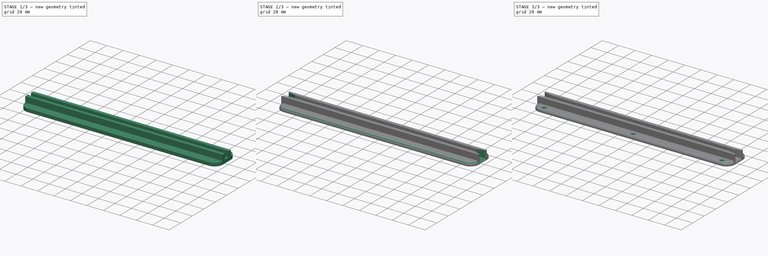
[diagram: build sequence overview — one tinted view per stage of 3, left to right]
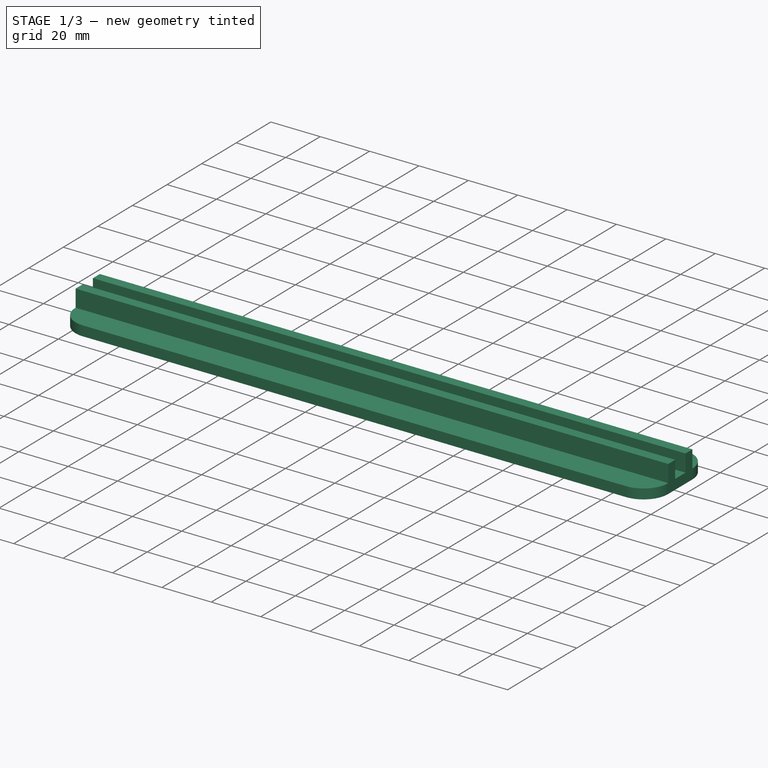
[diagram: stage 1 of 3 — iso view after this stage's code; geometry added in this stage tinted green]
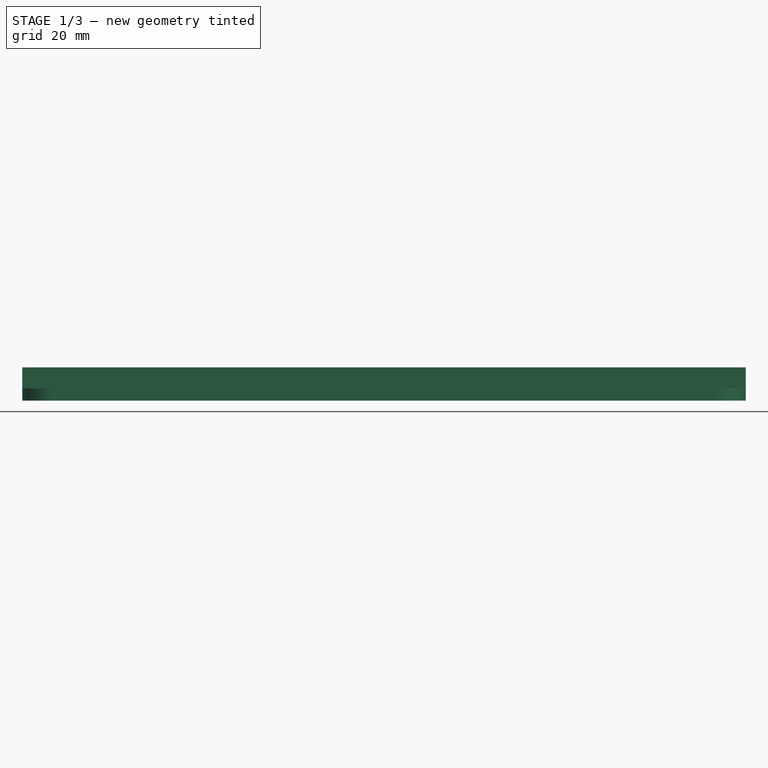
[diagram: stage 1 of 3 — front view after this stage's code; geometry added in this stage tinted green]
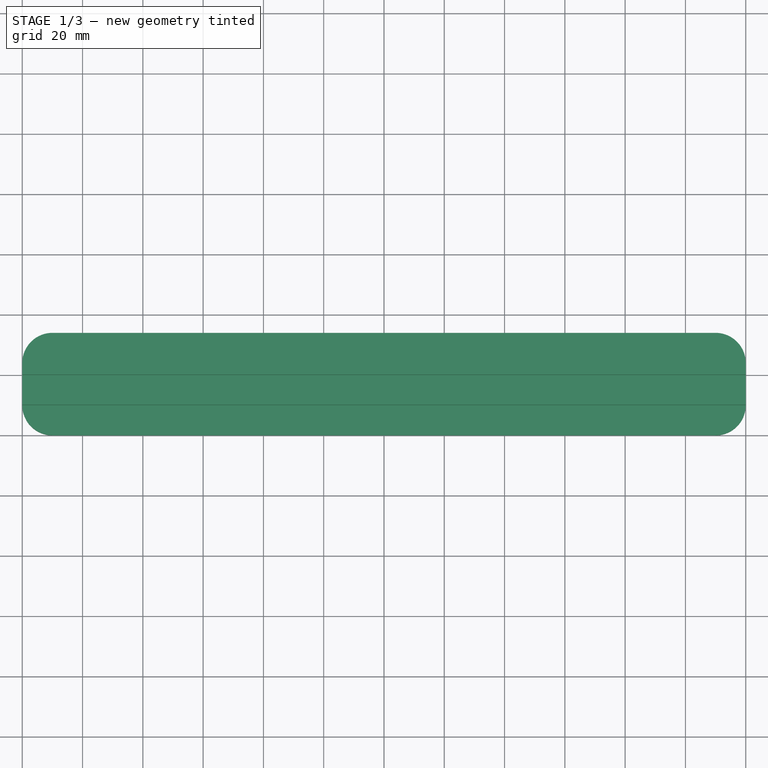
[diagram: stage 1 of 3 — top view after this stage's code; geometry added in this stage tinted green]
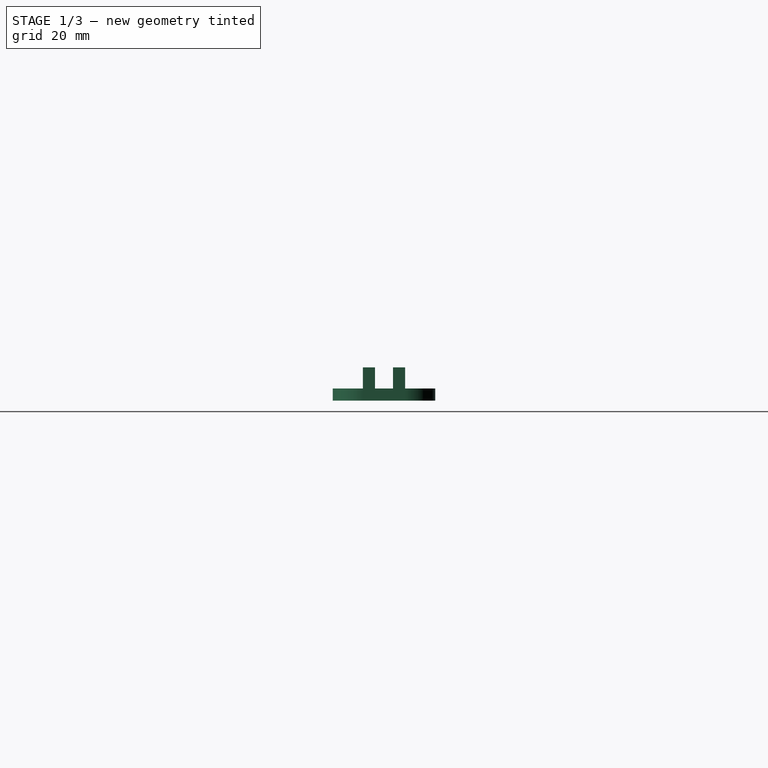
[diagram: stage 1 of 3 — right view after this stage's code; geometry added in this stage tinted green]
FCSTD DOCUMENT  (FreeCAD 0.20R29177 +233 (Git))
Label: drawer-bracket
License: All rights reserved
LicenseURL: http://en.wikipedia.org/wiki/All_rights_reserved
objects: PartDesign::Fillet×3, Sketcher::SketchObject×2, PartDesign::Chamfer×2, PartDesign::Pad×1, PartDesign::Pocket×1, PartDesign::Body×1
note: 17 computed .brp shape members not serialized (recipe doc carries the construction recipe); baked Part::Feature solids carry a one-line shape summary decoded from their .brp

FEATURE [Sketcher::SketchObject] Sketch
  FullyConstrained = true
  MapMode = 5
  Placement = pos=(0,0,0) rot=(0.57735,0.57735,0.57735;2.0944rad)
  Support = -> [YZ_Plane]
  sketch-geometry (12):
    g0: LineSegment StartX=0 StartY=0 StartZ=0 EndX=0 EndY=4 EndZ=0
    g1: LineSegment StartX=0 StartY=4 StartZ=0 EndX=10 EndY=4 EndZ=0
    g2: LineSegment StartX=10 StartY=4 StartZ=0 EndX=10 EndY=11 EndZ=0
    g3: LineSegment StartX=10 StartY=11 StartZ=0 EndX=14 EndY=11 EndZ=0
    g4: LineSegment StartX=14 StartY=11 StartZ=0 EndX=14 EndY=4 EndZ=0
    g5: LineSegment StartX=14 StartY=4 StartZ=0 EndX=20 EndY=4 EndZ=0
    g6: LineSegment StartX=20 StartY=4 StartZ=0 EndX=20 EndY=11 EndZ=0
    g7: LineSegment StartX=20 StartY=11 StartZ=0 EndX=24 EndY=11 EndZ=0
    g8: LineSegment StartX=24 StartY=11 StartZ=0 EndX=24 EndY=4 EndZ=0
    g9: LineSegment StartX=24 StartY=4 StartZ=0 EndX=34 EndY=4 EndZ=0
    g10: LineSegment StartX=34 StartY=4 StartZ=0 EndX=34 EndY=0 EndZ=0
    g11: LineSegment StartX=34 StartY=0 StartZ=0 EndX=0 EndY=0 EndZ=0
  constraints (35):
    c: Coincident(g0,g-1)
    c: PointOnObject(g0,g-2)
    c: Coincident(g1,g0)
    c: Horizontal(g1)
    c: Coincident(g2,g1)
    c: Vertical(g2)
    c: Coincident(g3,g2)
    c: Horizontal(g3)
    c: Coincident(g4,g3)
    c: Vertical(g4)
    c: Coincident(g5,g4)
    c: Horizontal(g5)
    c: Coincident(g6,g5)
    c: Vertical(g6)
    c: Coincident(g7,g6)
    c: Horizontal(g7)
    c: Coincident(g8,g7)
    c: Vertical(g8)
    c: Coincident(g9,g8)
    c: Horizontal(g9)
    c: Coincident(g10,g9)
    c: PointOnObject(g10,g-1)
    c: Vertical(g10)
    c: Coincident(g11,g10)
    c: Coincident(g11,g0)
    c: Equal(g1,g9)
    c: Equal(g2,g8)
    c: Equal(g7,g3)
    c: Equal(g4,g6)
    c: DistanceX(g5,g5) = 6
    c: DistanceX(g3,g3) = 4
    c: DistanceX(g1,g1) = 10
    c: DistanceY(g8,g8) = 7
    c: DistanceY(g10,g10) = 4
    c: Equal(g4,g2)
FEATURE [PartDesign::Pad] Pad
  Direction = (1,-2e-16,3e-16)
  Length = 240
  Length2 = 10
  Placement = pos=(0,0,0) rot=(0.57735,0.57735,0.57735;2.0944rad)
  Profile = -> Sketch
  ReferenceAxis = -> Sketch [N_Axis]
  Type = 0
FEATURE [PartDesign::Fillet] Fillet
  Base = -> Pad [Edge4,Edge34,Edge3,Edge33]
  BaseFeature = -> Pad
  Placement = pos=(0,0,0) rot=(0.57735,0.57735,0.57735;2.0944rad)
  Radius = 10
  SupportTransform = false
  UseAllEdges = false
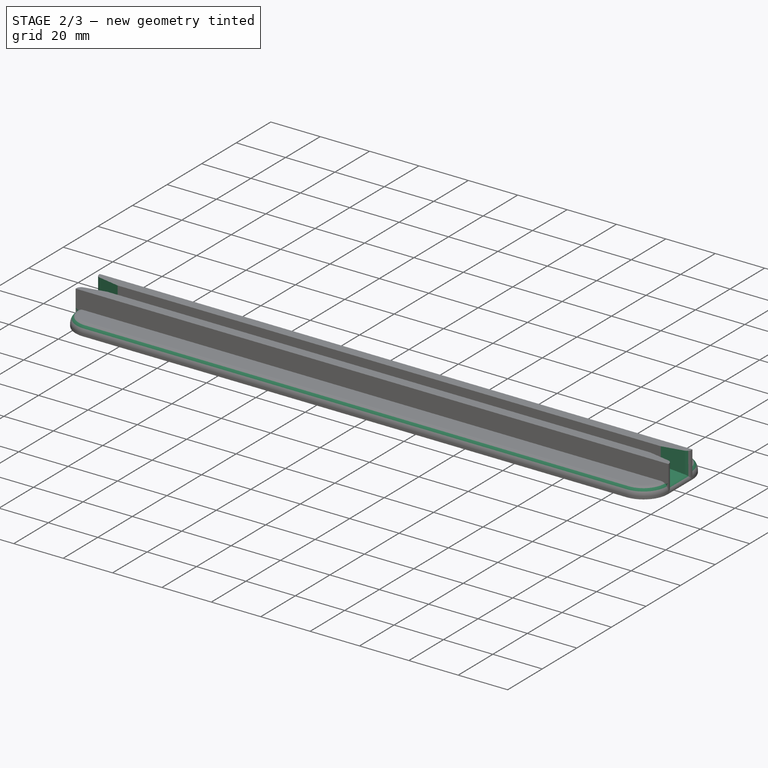
[diagram: stage 2 of 3 — iso view after this stage's code; geometry added in this stage tinted green]
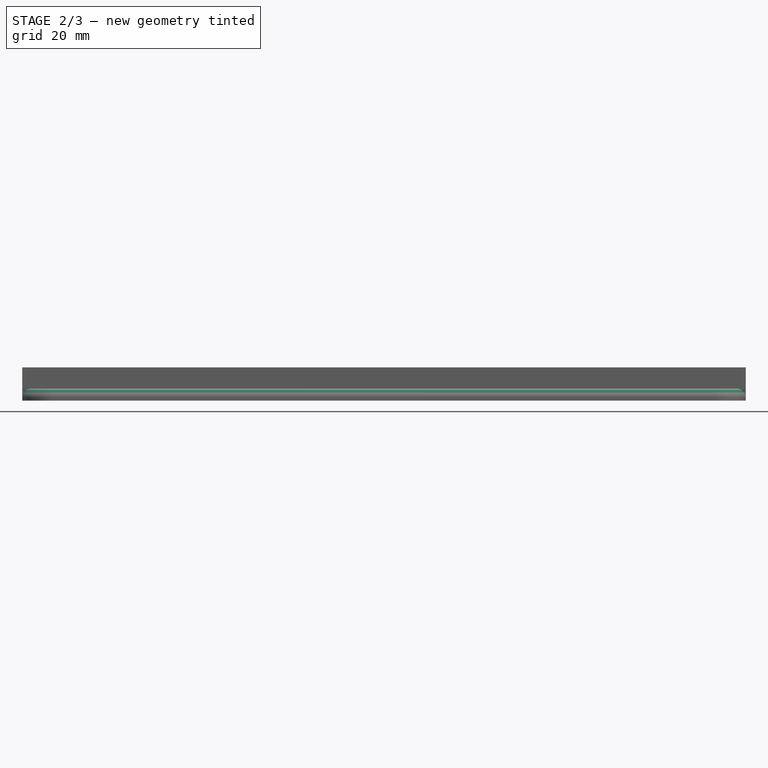
[diagram: stage 2 of 3 — front view after this stage's code; geometry added in this stage tinted green]
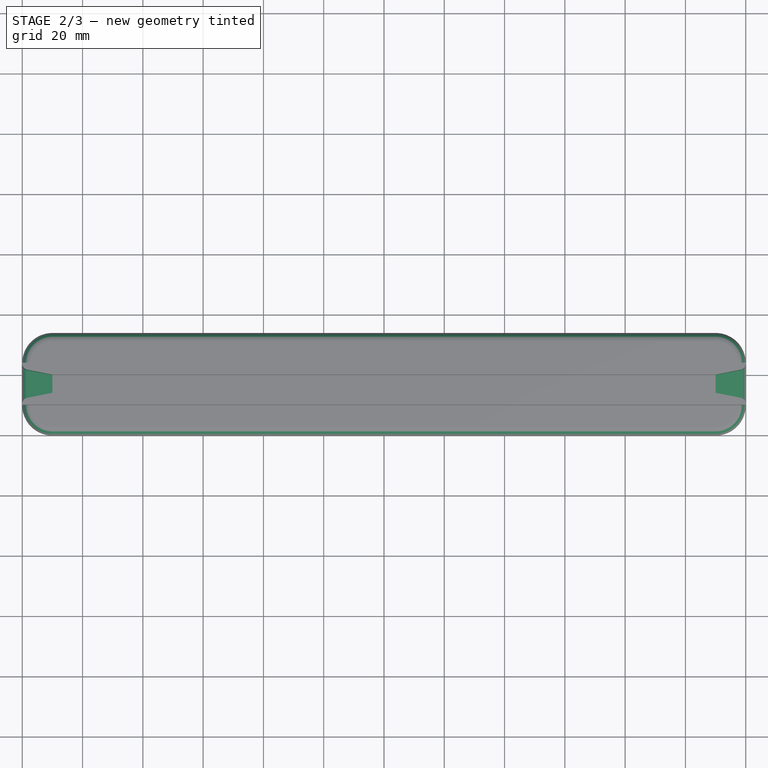
[diagram: stage 2 of 3 — top view after this stage's code; geometry added in this stage tinted green]
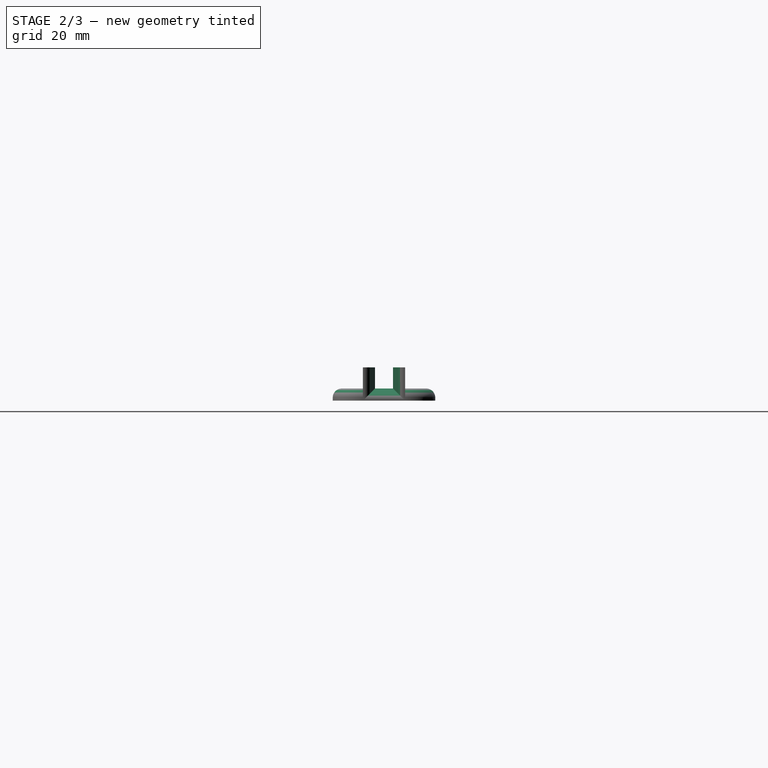
[diagram: stage 2 of 3 — right view after this stage's code; geometry added in this stage tinted green]
FEATURE [PartDesign::Fillet] Fillet001
  Base = -> Fillet [Edge15,Edge4,Edge13,Edge20,Edge17,Edge22]
  BaseFeature = -> Fillet
  Placement = pos=(0,0,0) rot=(0.57735,0.57735,0.57735;2.0944rad)
  Radius = 3
  SupportTransform = false
  UseAllEdges = false
FEATURE [PartDesign::Chamfer] Chamfer
  Angle = 45
  Base = -> Fillet001 [Edge46,Edge28,Edge26,Edge30,Edge44,Edge48]
  BaseFeature = -> Fillet001
  ChamferType = 1
  FlipDirection = false
  Placement = pos=(0,0,0) rot=(0.57735,0.57735,0.57735;2.0944rad)
  Size = 2
  Size2 = 10
  SupportTransform = false
  UseAllEdges = false
FEATURE [PartDesign::Fillet] Fillet002
  Base = -> Chamfer [Edge54,Edge53,Edge52,Edge2,Edge4,Edge6]
  BaseFeature = -> Chamfer
  Placement = pos=(0,0,0) rot=(0.57735,0.57735,0.57735;2.0944rad)
  Radius = 2
  SupportTransform = false
  UseAllEdges = false
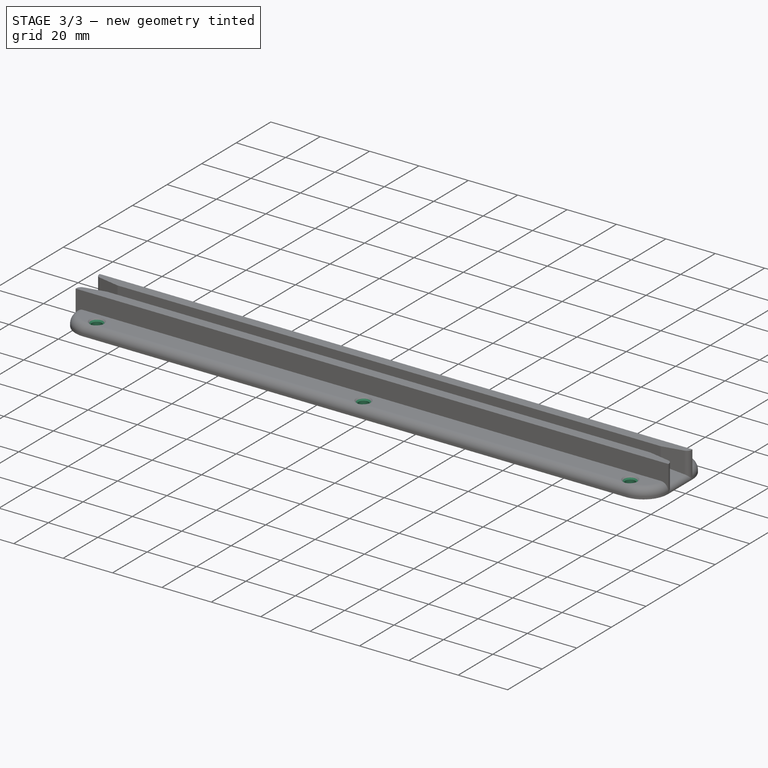
[diagram: stage 3 of 3 — iso view after this stage's code; geometry added in this stage tinted green]
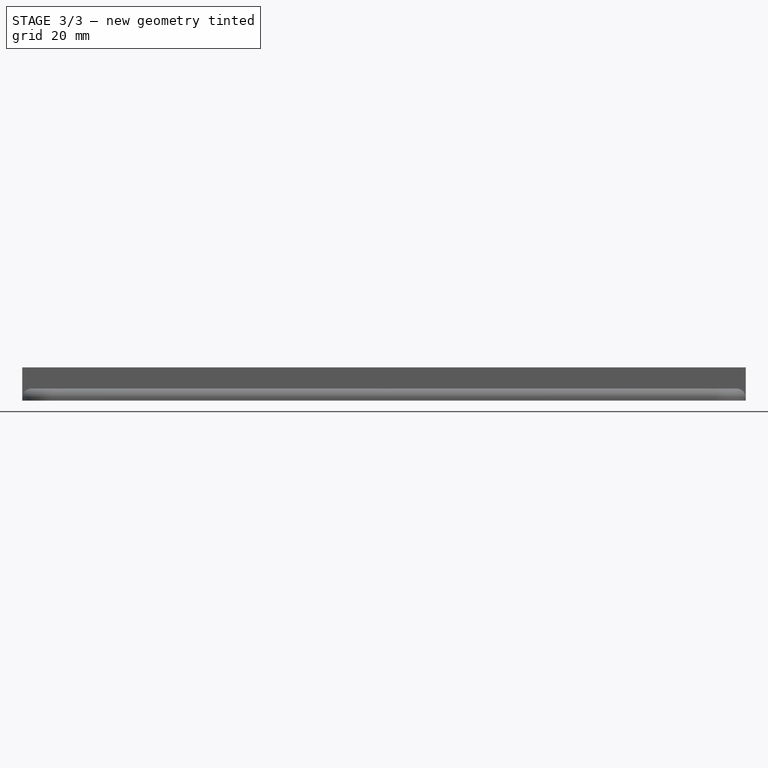
[diagram: stage 3 of 3 — front view after this stage's code; geometry added in this stage tinted green]
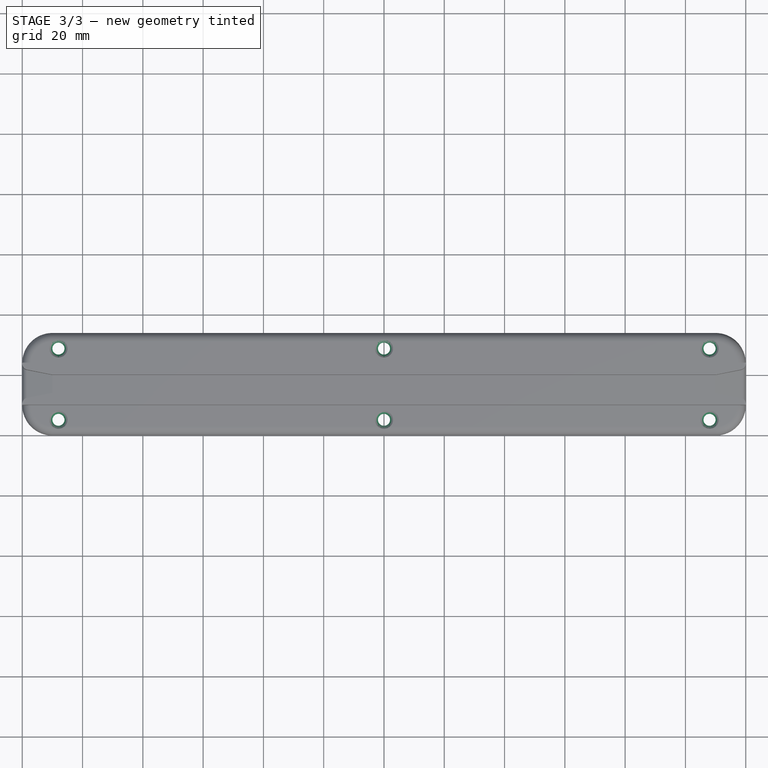
[diagram: stage 3 of 3 — top view after this stage's code; geometry added in this stage tinted green]
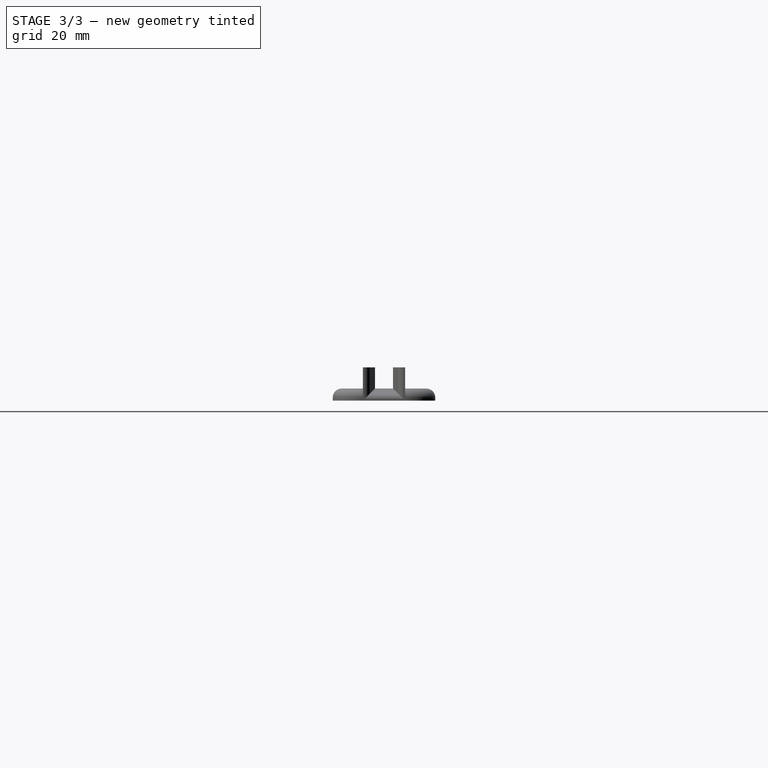
[diagram: stage 3 of 3 — right view after this stage's code; geometry added in this stage tinted green]
FEATURE [Sketcher::SketchObject] Sketch001
  ExternalGeometry = -> [Fillet002]
  FullyConstrained = true
  MapMode = 5
  Placement = pos=(-1.6e-15,2.2e-15,4) rot=(0,0,-1;1.5708rad)
  Support = -> [Fillet002]
  sketch-geometry (18):
    g0: LineSegment StartX=-28.8198 StartY=0 StartZ=0 EndX=-28.8198 EndY=240 EndZ=0
    g1: LineSegment StartX=-5.1802 StartY=0 StartZ=0 EndX=-5.1802 EndY=240 EndZ=0
    g2: LineSegment StartX=-28.8198 StartY=240 StartZ=0 EndX=-23.6396 EndY=240 EndZ=0
    g3: LineSegment StartX=-10.3604 StartY=240 StartZ=0 EndX=-5.1802 EndY=240 EndZ=0
    g4: LineSegment StartX=-5.1802 StartY=240 StartZ=0 EndX=0 EndY=240 EndZ=0
    g5: LineSegment StartX=-28.8198 StartY=12 StartZ=0 EndX=-5.1802 EndY=12 EndZ=0
    g6: LineSegment StartX=-28.8198 StartY=120 StartZ=0 EndX=-5.1802 EndY=120 EndZ=0
    g7: LineSegment StartX=-28.8198 StartY=228 StartZ=0 EndX=-5.1802 EndY=228 EndZ=0
    g8: LineSegment StartX=-5.1802 StartY=0 StartZ=0 EndX=-5.1802 EndY=12 EndZ=0
    g9: LineSegment StartX=-5.1802 StartY=228 StartZ=0 EndX=-5.1802 EndY=240 EndZ=0
    g10: LineSegment StartX=-5.1802 StartY=12 StartZ=0 EndX=-5.1802 EndY=120 EndZ=0
    g11: LineSegment StartX=-5.1802 StartY=120 StartZ=0 EndX=-5.1802 EndY=228 EndZ=0
    g12: Circle CenterX=-28.8198 CenterY=12 CenterZ=0 NormalX=0 NormalY=0 NormalZ=1 AngleXU=0 Radius=2
    g13: Circle CenterX=-5.1802 CenterY=12 CenterZ=0 NormalX=0 NormalY=0 NormalZ=1 AngleXU=0 Radius=2
    g14: Circle CenterX=-5.1802 CenterY=120 CenterZ=0 NormalX=0 NormalY=0 NormalZ=1 AngleXU=0 Radius=2
    g15: Circle CenterX=-28.8198 CenterY=120 CenterZ=0 NormalX=0 NormalY=0 NormalZ=1 AngleXU=0 Radius=2
    g16: Circle CenterX=-28.8198 CenterY=228 CenterZ=0 NormalX=0 NormalY=0 NormalZ=1 AngleXU=0 Radius=2
    g17: Circle CenterX=-5.1802 CenterY=228 CenterZ=0 NormalX=0 NormalY=0 NormalZ=1 AngleXU=0 Radius=2
  constraints (47):
    c: PointOnObject(g0,g-1)
    c: Vertical(g0)
    c: PointOnObject(g1,g-1)
    c: Vertical(g1)
    c: Horizontal(g0,g-3)
    c: Horizontal(g-3,g1)
    c: Coincident(g2,g0)
    c: Coincident(g2,g-3)
    c: Coincident(g3,g-3)
    c: Coincident(g3,g1)
    c: Coincident(g4,g1)
    c: PointOnObject(g4,g-2)
    c: Equal(g4,g3)
    c: Equal(g3,g2)
    c: Horizontal(g4)
    c: PointOnObject(g5,g0)
    c: PointOnObject(g5,g1)
    c: Horizontal(g5)
    c: PointOnObject(g6,g0)
    c: PointOnObject(g6,g1)
    c: Horizontal(g6)
    c: PointOnObject(g7,g0)
    c: PointOnObject(g7,g1)
    c: Horizontal(g7)
    c: Coincident(g8,g1)
    c: Coincident(g8,g5)
    c: Coincident(g9,g7)
    c: Coincident(g9,g1)
    c: Equal(g8,g9)
    c: Coincident(g10,g5)
    c: Coincident(g10,g6)
    c: Coincident(g11,g6)
    c: Coincident(g11,g7)
    c: Equal(g10,g11)
    c: DistanceY(g1,g5) = 12
    c: Coincident(g12,g5)
    c: Coincident(g13,g5)
    c: Coincident(g14,g6)
    c: Coincident(g15,g6)
    c: Coincident(g16,g7)
    c: Coincident(g17,g7)
    c: Equal(g12,g13)
    c: Equal(g13,g14)
    c: Equal(g14,g15)
    c: Equal(g15,g16)
    c: Equal(g16,g17)
    c: Diameter(g16) = 4
FEATURE [PartDesign::Pocket] Pocket
  BaseFeature = -> Fillet002
  Direction = (4e-16,-6e-16,-1)
  Length = 5
  Length2 = 5
  Placement = pos=(0,0,0) rot=(0.57735,0.57735,0.57735;2.0944rad)
  Profile = -> Sketch001
  ReferenceAxis = -> Sketch001 [N_Axis]
  Type = 1
FEATURE [PartDesign::Chamfer] Chamfer001
  Angle = 45
  Base = -> Pocket [Edge75,Edge100,Edge98,Edge76,Edge74,Edge94]
  BaseFeature = -> Pocket
  ChamferType = 0
  FlipDirection = false
  Placement = pos=(0,0,0) rot=(0.57735,0.57735,0.57735;2.0944rad)
  Size = 1
  Size2 = 1
  SupportTransform = false
  UseAllEdges = false
FEATURE [PartDesign::Body] Body
  Group = -> [Sketch,Pad,Fillet,Fillet001,Chamfer,Fillet002,Sketch001,Pocket,Chamfer001]
  Origin = -> Origin
  Tip = -> Chamfer001
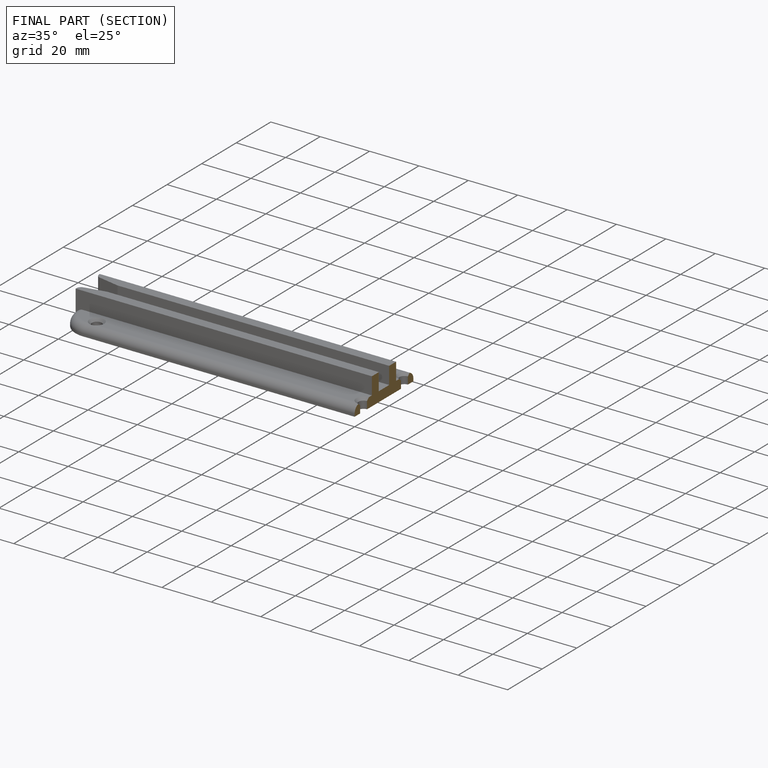
[diagram: finished part — half-section view (interior)]
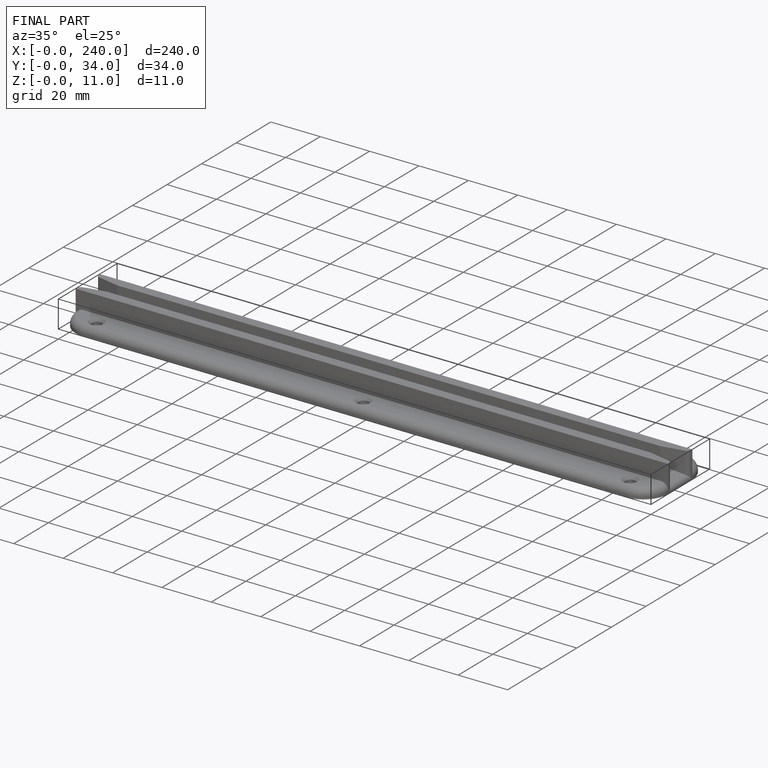
[diagram: finished part — iso view with bounding-box wireframe]
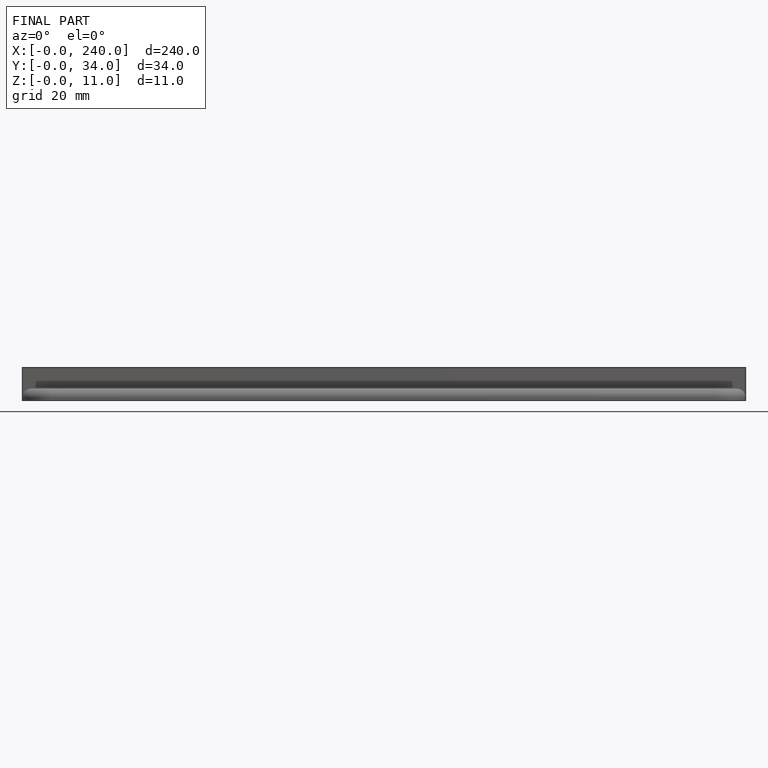
[diagram: finished part — front view with bounding-box wireframe]
